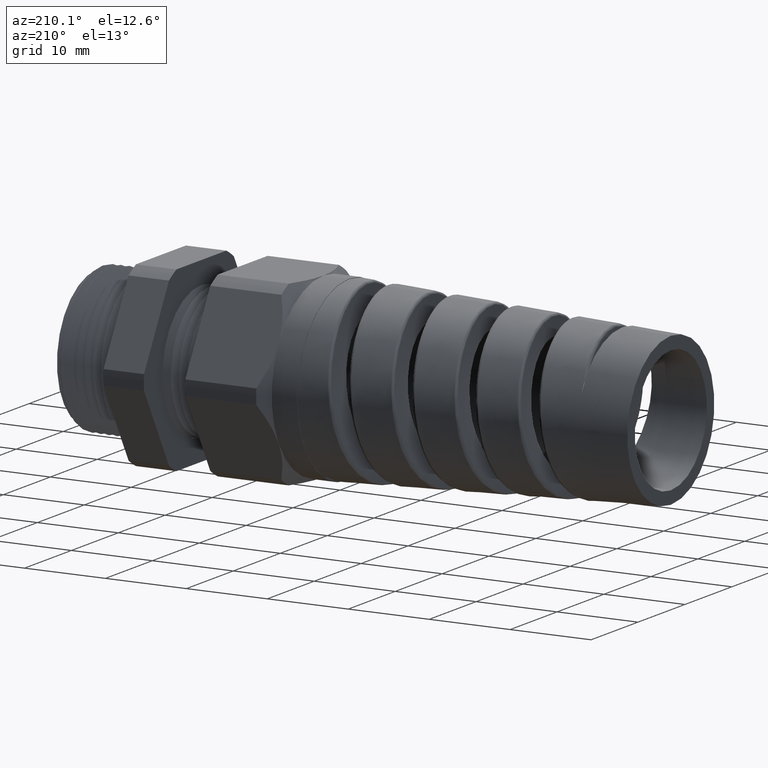
[diagram: clean part render]
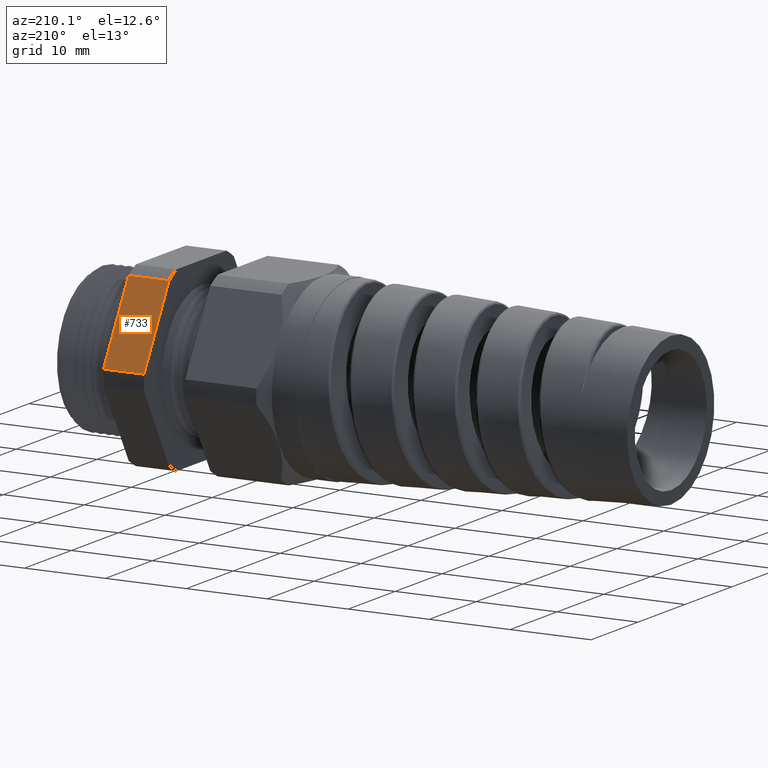
[diagram: same view with one face highlighted and labeled with its STEP entity id]
A machine part, auxiliary view. The second image highlights one B-rep face of the part: STEP entity #733.
In plain terms, the highlighted planar face has unit normal (0, 0.866, 0.5).
Its self-contained STEP definition (entity closure, byte-faithful):
#729 = EDGE_CURVE ( 'NONE', #1198, #730, #3552, .T. ) ;
#730 = VERTEX_POINT ( 'NONE', #3612 ) ;
#733 = ADVANCED_FACE ( 'NONE', ( #3606 ), #3605, .T. ) ;
#734 = EDGE_LOOP ( 'NONE', ( #789, #790, #791, #794 ) ) ;
#789 = ORIENTED_EDGE ( 'NONE', *, *, #729, .F. ) ;
#790 = ORIENTED_EDGE ( 'NONE', *, *, #1197, .F. ) ;
#791 = ORIENTED_EDGE ( 'NONE', *, *, #792, .T. ) ;
#792 = EDGE_CURVE ( 'NONE', #1195, #793, #3657, .T. ) ;
#793 = VERTEX_POINT ( 'NONE', #3653 ) ;
#794 = ORIENTED_EDGE ( 'NONE', *, *, #795, .F. ) ;
#795 = EDGE_CURVE ( 'NONE', #730, #793, #3652, .T. ) ;
#1195 = VERTEX_POINT ( 'NONE', #5148 ) ;
#1197 = EDGE_CURVE ( 'NONE', #1195, #1198, #5147, .T. ) ;
#1198 = VERTEX_POINT ( 'NONE', #5143 ) ;
#3552 = LINE ( 'NONE', #3615, #3614 ) ;
#3601 = DIRECTION ( 'NONE',  ( 0.0000000000000000000, -0.4999999999999998300, 0.8660254037844386000 ) ) ;
#3602 = DIRECTION ( 'NONE',  ( 0.0000000000000000000, 0.8660254037844387100, 0.4999999999999998900 ) ) ;
#3603 = CARTESIAN_POINT ( 'NONE',  ( 0.0000000000000000000, 0.2719366022533514200, 0.3989919884595461400 ) ) ;
#3604 = AXIS2_PLACEMENT_3D ( 'NONE', #3603, #3602, #3601 ) ;
#3605 = PLANE ( 'NONE',  #3604 ) ;
#3606 = FACE_OUTER_BOUND ( 'NONE', #734, .T. ) ;
#3612 = CARTESIAN_POINT ( 'NONE',  ( -0.5068503937007874400, 0.2719366022533514200, 0.3989919884595460900 ) ) ;
#3613 = DIRECTION ( 'NONE',  ( -1.000000000000000000, 0.0000000000000000000, 0.0000000000000000000 ) ) ;
#3614 = VECTOR ( 'NONE', #3613, 39.37007874015748100 ) ;
#3615 = CARTESIAN_POINT ( 'NONE',  ( 0.0000000000000000000, 0.2719366022533514200, 0.3989919884595460900 ) ) ;
#3651 = CARTESIAN_POINT ( 'NONE',  ( -0.5068503937007874400, 0.5942210506462307600, -0.1592210506462307900 ) ) ;
#3652 = LINE ( 'NONE', #3651, #3714 ) ;
#3653 = CARTESIAN_POINT ( 'NONE',  ( -0.5068503937007874400, 0.4815054990391101600, 0.03600801154045398000 ) ) ;
#3654 = DIRECTION ( 'NONE',  ( -1.000000000000000000, 0.0000000000000000000, 0.0000000000000000000 ) ) ;
#3655 = VECTOR ( 'NONE', #3654, 39.37007874015748100 ) ;
#3656 = CARTESIAN_POINT ( 'NONE',  ( 0.0000000000000000000, 0.4815054990391101600, 0.03600801154045398000 ) ) ;
#3657 = LINE ( 'NONE', #3656, #3655 ) ;
#3713 = DIRECTION ( 'NONE',  ( 0.0000000000000000000, 0.4999999999999998300, -0.8660254037844386000 ) ) ;
#3714 = VECTOR ( 'NONE', #3713, 39.37007874015748900 ) ;
#5143 = CARTESIAN_POINT ( 'NONE',  ( -0.3100000000000000000, 0.2719366022533514200, 0.3989919884595460900 ) ) ;
#5144 = DIRECTION ( 'NONE',  ( 0.0000000000000000000, -0.4999999999999998300, 0.8660254037844386000 ) ) ;
#5145 = VECTOR ( 'NONE', #5144, 39.37007874015748900 ) ;
#5146 = CARTESIAN_POINT ( 'NONE',  ( -0.3100000000000000000, 0.5942210506462307600, -0.1592210506462307900 ) ) ;
#5147 = LINE ( 'NONE', #5146, #5145 ) ;
#5148 = CARTESIAN_POINT ( 'NONE',  ( -0.3100000000000000000, 0.4815054990391101600, 0.03600801154045398000 ) ) ;